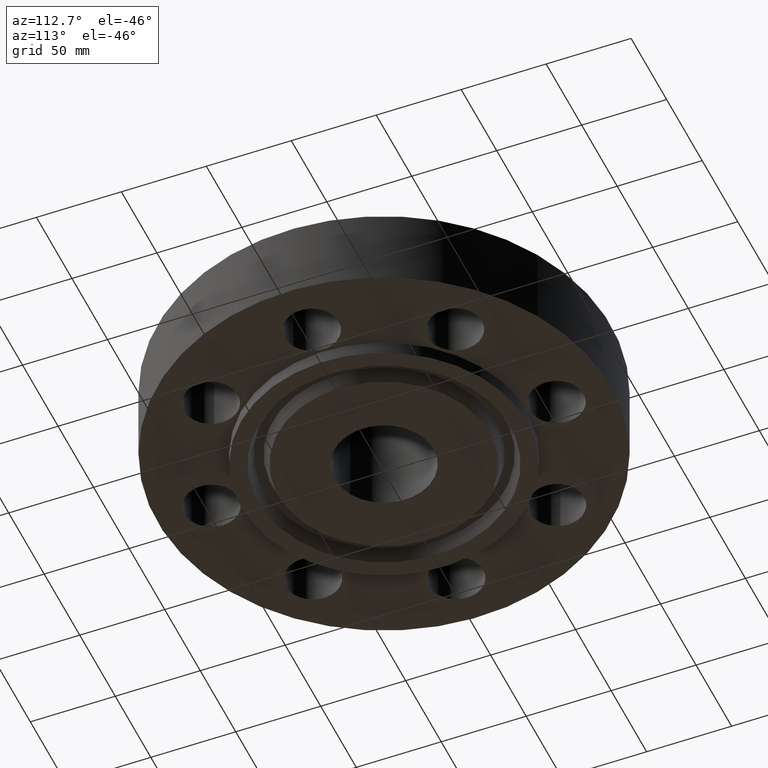
[diagram: clean part render]
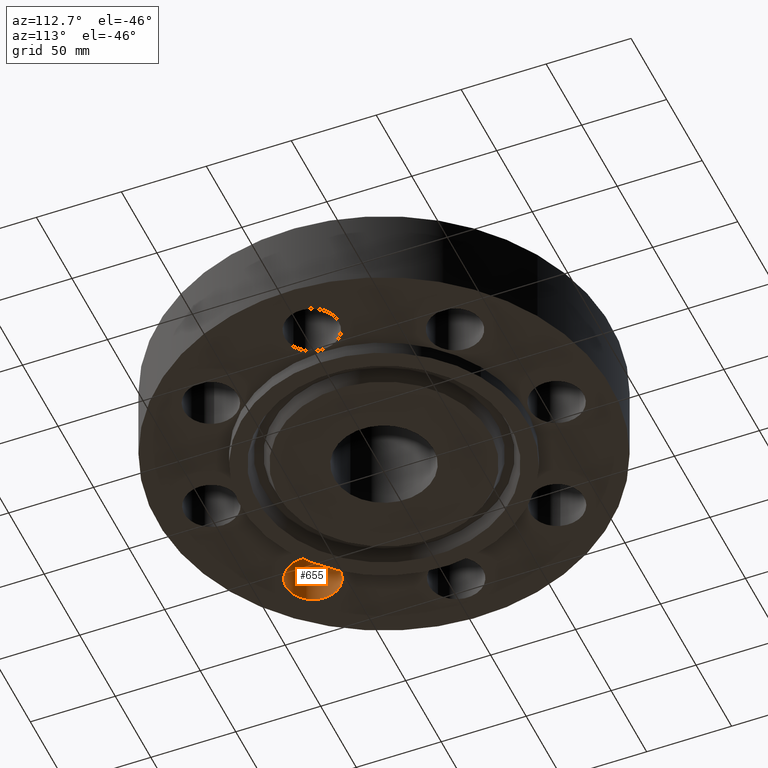
[diagram: same view with one face highlighted and labeled with its STEP entity id]
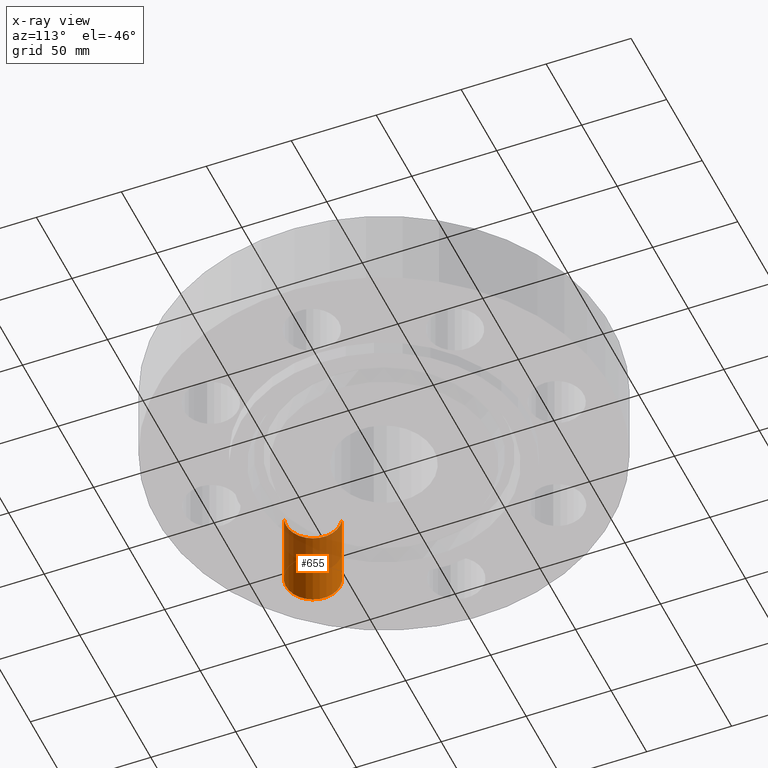
[diagram: x-ray of the same camera — body ghosted, the highlighted face saturated]
A machine part, auxiliary view. The second image highlights one B-rep face of the part: STEP entity #655.
The next image is the same camera in x-ray: the body ghosted, the highlighted face saturated — about 44% of this face is hidden behind the body in this view.
In plain terms, the highlighted cylindrical surface (edge-blend (fillet) strip) has radius 15.875 mm, axis along (0, 0, -1).
Its self-contained STEP definition (entity closure, byte-faithful):
#572=AXIS2_PLACEMENT_3D('Circle Axis2P3D',#570,#571,$) ;
#628=AXIS2_PLACEMENT_3D('Cylinder Axis2P3D',#625,#626,#627) ;
#646=AXIS2_PLACEMENT_3D('Circle Axis2P3D',#644,#645,$) ;
#570=CARTESIAN_POINT('Axis2P3D Location',(-2.82842712476,-2.82842712476,0.)) ;
#574=CARTESIAN_POINT('Vertex',(-2.65246491779,-3.4281456435,0.)) ;
#576=CARTESIAN_POINT('Vertex',(-3.00438933172,-2.22870860601,0.)) ;
#625=CARTESIAN_POINT('Axis2P3D Location',(-2.82842712476,-2.82842712476,1.87606299213)) ;
#630=CARTESIAN_POINT('Line Origine',(-2.65246491779,-3.4281456435,0.940000000004)) ;
#634=CARTESIAN_POINT('Vertex',(-2.65246491779,-3.4281456435,1.88000000001)) ;
#637=CARTESIAN_POINT('Line Origine',(-3.00438933172,-2.22870860601,0.940000000004)) ;
#641=CARTESIAN_POINT('Vertex',(-3.00438933172,-2.22870860601,1.88000000001)) ;
#644=CARTESIAN_POINT('Axis2P3D Location',(-2.82842712476,-2.82842712476,1.88000000001)) ;
#571=DIRECTION('Axis2P3D Direction',(0.,0.,-0.0393700787402)) ;
#626=DIRECTION('Axis2P3D Direction',(0.,0.,-0.0393700787402)) ;
#627=DIRECTION('Axis2P3D XDirection',(-0.0110842335096,0.0377775444876,0.)) ;
#631=DIRECTION('Vector Direction',(0.,0.,-0.0393700787402)) ;
#638=DIRECTION('Vector Direction',(0.,0.,-0.0393700787402)) ;
#645=DIRECTION('Axis2P3D Direction',(0.,0.,-0.0393700787402)) ;
#632=VECTOR('Line Direction',#631,0.0393700787402) ;
#639=VECTOR('Line Direction',#638,0.0393700787402) ;
#650=ORIENTED_EDGE('',*,*,#636,.F.) ;
#651=ORIENTED_EDGE('',*,*,#578,.T.) ;
#652=ORIENTED_EDGE('',*,*,#643,.T.) ;
#653=ORIENTED_EDGE('',*,*,#648,.F.) ;
#655=ADVANCED_FACE('PartBody',(#654),#629,.F.) ;
#573=CIRCLE('generated circle',#572,0.625000000002) ;
#647=CIRCLE('generated circle',#646,0.625000000002) ;
#629=CYLINDRICAL_SURFACE('generated cylinder',#628,0.625000000002) ;
#578=EDGE_CURVE('',#575,#577,#573,.T.) ;
#636=EDGE_CURVE('',#575,#635,#633,.F.) ;
#643=EDGE_CURVE('',#577,#642,#640,.F.) ;
#648=EDGE_CURVE('',#635,#642,#647,.T.) ;
#649=EDGE_LOOP('',(#650,#651,#652,#653)) ;
#654=FACE_OUTER_BOUND('',#649,.T.) ;
#633=LINE('Line',#630,#632) ;
#640=LINE('Line',#637,#639) ;
#575=VERTEX_POINT('',#574) ;
#577=VERTEX_POINT('',#576) ;
#635=VERTEX_POINT('',#634) ;
#642=VERTEX_POINT('',#641) ;